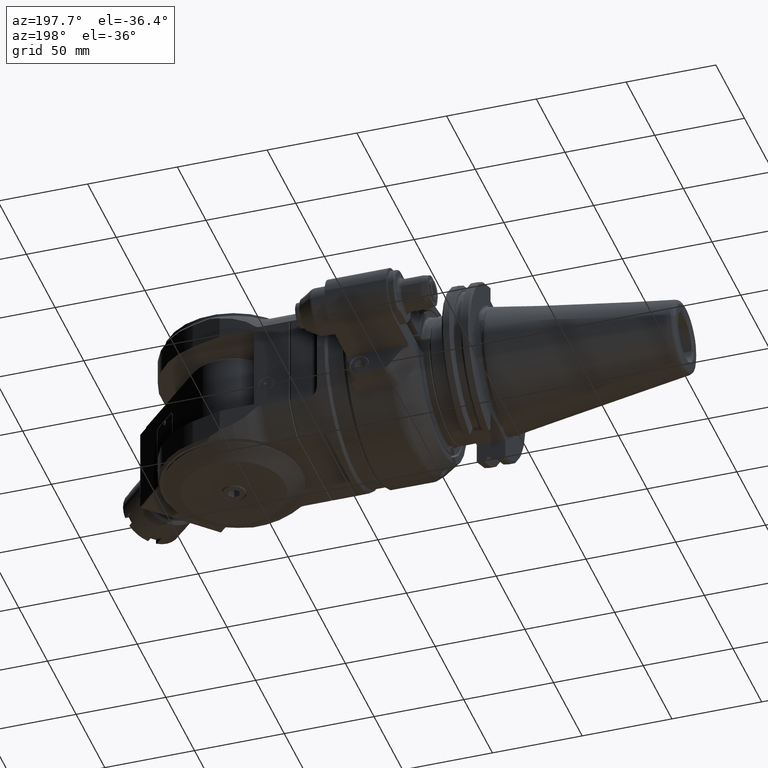
[diagram: clean part render]
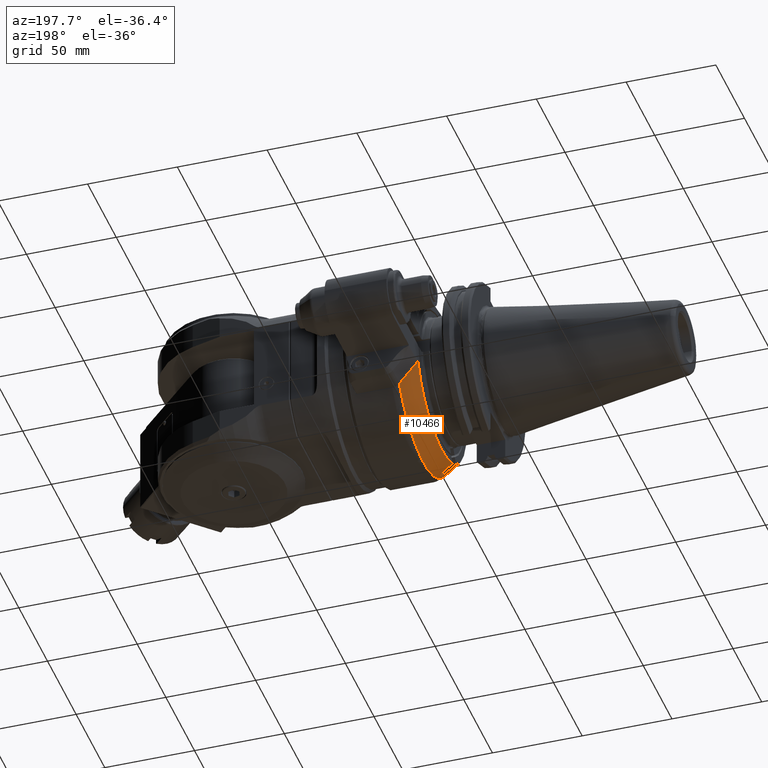
[diagram: same view with one face highlighted and labeled with its STEP entity id]
A machine part, auxiliary view. The second image highlights one B-rep face of the part: STEP entity #10466.
In plain terms, the highlighted conical surface has half-angle 30 deg.
Its self-contained STEP definition (entity closure, byte-faithful):
#229=(
BOUNDED_CURVE()
B_SPLINE_CURVE(2,(#15562,#15563,#15564),.UNSPECIFIED.,.F.,.F.)
B_SPLINE_CURVE_WITH_KNOTS((3,3),(-2.43290769105801,-0.320305328668483),
 .UNSPECIFIED.)
CURVE()
GEOMETRIC_REPRESENTATION_ITEM()
RATIONAL_B_SPLINE_CURVE((1.03252076511009,1.03062027413364,1.00749895945509))
REPRESENTATION_ITEM('')
);
#776=CONICAL_SURFACE('',#11266,46.96410161514,0.523598775598299);
#900=FACE_OUTER_BOUND('',#1551,.T.);
#1551=EDGE_LOOP('',(#7216,#7217,#7218,#7219,#7220,#7221,#7222,#7223));
#2295=CIRCLE('',#11267,49.92820323028);
#2296=CIRCLE('',#11268,44.);
#2297=CIRCLE('',#11269,44.);
#2749=B_SPLINE_CURVE_WITH_KNOTS('',3,(#15683,#15684,#15685,#15686,#15687,
#15688,#15689,#15690,#15691,#15692),.UNSPECIFIED.,.F.,.F.,(4,3,3,4),(0.,
0.3333333333333,0.6666666666667,1.),.UNSPECIFIED.);
#2752=B_SPLINE_CURVE_WITH_KNOTS('',3,(#15745,#15746,#15747,#15748,#15749,
#15750,#15751,#15752,#15753,#15754,#15755,#15756,#15757,#15758,#15759,#15760,
#15761,#15762),.UNSPECIFIED.,.F.,.F.,(4,2,2,2,2,2,2,2,4),(1.11206982951625,
1.24885677734264,1.4029266724495,1.5444028479349,1.68587902342029,1.82735519890569,
1.96883137439109,2.12290126949794,2.25968821732541),.UNSPECIFIED.);
#2754=B_SPLINE_CURVE_WITH_KNOTS('',3,(#15784,#15785,#15786,#15787,#15788,
#15789,#15790,#15791,#15792,#15793),.UNSPECIFIED.,.F.,.F.,(4,3,3,4),(0.,
0.3333333333333,0.6666666666667,1.),.UNSPECIFIED.);
#2755=B_SPLINE_CURVE_WITH_KNOTS('',3,(#15799,#15800,#15801,#15802,#15803,
#15804,#15805,#15806,#15807,#15808),.UNSPECIFIED.,.F.,.F.,(4,3,3,4),(0.,
0.3333333333333,0.6666666666667,1.),.UNSPECIFIED.);
#4490=VERTEX_POINT('',#15550);
#4491=VERTEX_POINT('',#15561);
#4512=VERTEX_POINT('',#15680);
#4513=VERTEX_POINT('',#15682);
#4526=VERTEX_POINT('',#15743);
#4527=VERTEX_POINT('',#15744);
#4531=VERTEX_POINT('',#15783);
#4532=VERTEX_POINT('',#15797);
#5541=EDGE_CURVE('',#4490,#4491,#229,.T.);
#5568=EDGE_CURVE('',#4513,#4512,#2749,.T.);
#5586=EDGE_CURVE('',#4526,#4527,#2752,.F.);
#5593=EDGE_CURVE('',#4526,#4531,#2754,.T.);
#5595=EDGE_CURVE('',#4513,#4490,#2295,.T.);
#5596=EDGE_CURVE('',#4532,#4512,#2296,.T.);
#5597=EDGE_CURVE('',#4532,#4527,#2755,.T.);
#5598=EDGE_CURVE('',#4491,#4531,#2297,.T.);
#7216=ORIENTED_EDGE('',*,*,#5595,.F.);
#7217=ORIENTED_EDGE('',*,*,#5568,.T.);
#7218=ORIENTED_EDGE('',*,*,#5596,.F.);
#7219=ORIENTED_EDGE('',*,*,#5597,.T.);
#7220=ORIENTED_EDGE('',*,*,#5586,.F.);
#7221=ORIENTED_EDGE('',*,*,#5593,.T.);
#7222=ORIENTED_EDGE('',*,*,#5598,.F.);
#7223=ORIENTED_EDGE('',*,*,#5541,.F.);
#10466=ADVANCED_FACE('',(#900),#776,.T.);
#11266=AXIS2_PLACEMENT_3D('',#15795,#12487,#12488);
#11267=AXIS2_PLACEMENT_3D('',#15796,#12489,#12490);
#11268=AXIS2_PLACEMENT_3D('',#15798,#12491,#12492);
#11269=AXIS2_PLACEMENT_3D('',#15809,#12493,#12494);
#12487=DIRECTION('center_axis',(1.,0.,0.));
#12488=DIRECTION('ref_axis',(0.,-1.,0.));
#12489=DIRECTION('center_axis',(1.,0.,0.));
#12490=DIRECTION('ref_axis',(0.,-0.999548602989596,-0.0300431400080999));
#12491=DIRECTION('center_axis',(-1.,0.,0.));
#12492=DIRECTION('ref_axis',(0.,-0.567304004296905,-0.823508449688707));
#12493=DIRECTION('center_axis',(-1.,0.,0.));
#12494=DIRECTION('ref_axis',(0.,0.948863636363632,-0.315686235979311));
#15550=CARTESIAN_POINT('',(-41.23205080757,41.75,-27.38180011986));
#15561=CARTESIAN_POINT('',(-51.5,41.74999999999,-13.89019438316));
#15562=CARTESIAN_POINT('Ctrl Pts',(-41.2320508075673,41.75,-27.3818001198562));
#15563=CARTESIAN_POINT('Ctrl Pts',(-48.0442956678564,41.75,-20.2102413126131));
#15564=CARTESIAN_POINT('Ctrl Pts',(-51.4999999999632,41.75,-13.8901943831554));
#15680=CARTESIAN_POINT('',(-51.5,-43.97442438509,-1.5));
#15682=CARTESIAN_POINT('',(-41.2320595617708,-49.9056607292726,-1.50000007595379));
#15683=CARTESIAN_POINT('Ctrl Pts',(-41.23206831446,-49.90565567486,-1.5));
#15684=CARTESIAN_POINT('Ctrl Pts',(-42.37293045262,-49.24668115316,-1.5));
#15685=CARTESIAN_POINT('Ctrl Pts',(-43.5138242319948,-48.5876765558151,
-1.5));
#15686=CARTESIAN_POINT('Ctrl Pts',(-44.6547122553555,-47.928662020786,-1.5));
#15687=CARTESIAN_POINT('Ctrl Pts',(-45.7956002787165,-47.2696474857567,
-1.5));
#15688=CARTESIAN_POINT('Ctrl Pts',(-46.9364825460635,-46.6106230130433,
-1.5));
#15689=CARTESIAN_POINT('Ctrl Pts',(-48.077363540237,-45.9515842405615,-1.5));
#15690=CARTESIAN_POINT('Ctrl Pts',(-49.2182445344102,-45.2925454680799,
-1.5));
#15691=CARTESIAN_POINT('Ctrl Pts',(-50.35912425541,-44.63349239583,-1.5));
#15692=CARTESIAN_POINT('Ctrl Pts',(-51.5,-43.97442438509,-1.5));
#15743=CARTESIAN_POINT('',(-46.5,-20.34687855495,-42.24182743261));
#15744=CARTESIAN_POINT('',(-46.5,-26.40905638145,-38.74182743261));
#15745=CARTESIAN_POINT('Ctrl Pts',(-46.5000000000002,-26.4090563814455,
-38.7418274326129));
#15746=CARTESIAN_POINT('Ctrl Pts',(-46.0992085079157,-26.5250786273062,
-38.9427838572518));
#15747=CARTESIAN_POINT('Ctrl Pts',(-45.6780271021362,-26.5877455833705,
-39.1945532832522));
#15748=CARTESIAN_POINT('Ctrl Pts',(-44.8336229766582,-26.5711996809164,
-39.7934207779667));
#15749=CARTESIAN_POINT('Ctrl Pts',(-44.416786404141,-26.4721822625297,-40.1489075806805));
#15750=CARTESIAN_POINT('Ctrl Pts',(-43.7689100689263,-26.1383338430384,
-40.8117265913294));
#15751=CARTESIAN_POINT('Ctrl Pts',(-43.4858969585476,-25.8928265156274,
-41.1623315039927));
#15752=CARTESIAN_POINT('Ctrl Pts',(-43.1011571537054,-25.2551263794943,
-41.8163473322267));
#15753=CARTESIAN_POINT('Ctrl Pts',(-43.,-24.8621451840586,-42.1193241407055));
#15754=CARTESIAN_POINT('Ctrl Pts',(-43.,-24.0453321040545,-42.5909113923235));
#15755=CARTESIAN_POINT('Ctrl Pts',(-43.1011571537054,-23.5864558934365,
-42.779754686541));
#15756=CARTESIAN_POINT('Ctrl Pts',(-43.4858969585476,-22.7012115036422,
-43.0050112903121));
#15757=CARTESIAN_POINT('Ctrl Pts',(-43.7689100689263,-22.2748250788787,
-43.0423244163336));
#15758=CARTESIAN_POINT('Ctrl Pts',(-44.416786404141,-21.5338827677997,-43.000036123302));
#15759=CARTESIAN_POINT('Ctrl Pts',(-44.8336229766582,-21.1765134567462,
-42.908044321685));
#15760=CARTESIAN_POINT('Ctrl Pts',(-45.6780271021394,-20.6496060415937,
-42.6229397461805));
#15761=CARTESIAN_POINT('Ctrl Pts',(-46.0992085079223,-20.4629008008123,
-42.4427838572491));
#15762=CARTESIAN_POINT('Ctrl Pts',(-46.5000000000096,-20.3468785549518,
-42.2418274326083));
#15783=CARTESIAN_POINT('',(-51.5,-18.89919836257,-39.7343717863));
#15784=CARTESIAN_POINT('Ctrl Pts',(-46.5000000000021,-20.3468785549516,
-42.2418274326133));
#15785=CARTESIAN_POINT('Ctrl Pts',(-47.0555636796788,-20.1860524218991,
-41.9632683989681));
#15786=CARTESIAN_POINT('Ctrl Pts',(-47.6111251834313,-20.0252176577258,
-41.6846944543344));
#15787=CARTESIAN_POINT('Ctrl Pts',(-48.1666839961781,-19.864373839952,-41.4061048113106));
#15788=CARTESIAN_POINT('Ctrl Pts',(-48.7222428089251,-19.7035300221781,
-41.1275151682867));
#15789=CARTESIAN_POINT('Ctrl Pts',(-49.2777989309903,-19.5426771511998,
-40.8489098273047));
#15790=CARTESIAN_POINT('Ctrl Pts',(-49.8333517949414,-19.381814745264,-40.5702879469552));
#15791=CARTESIAN_POINT('Ctrl Pts',(-50.3889046588924,-19.2209523393283,
-40.2916660666057));
#15792=CARTESIAN_POINT('Ctrl Pts',(-50.9444542651007,-19.0600803989606,
-40.0130276473512));
#15793=CARTESIAN_POINT('Ctrl Pts',(-51.5000000000014,-18.8991983625711,
-39.7343717863022));
#15795=CARTESIAN_POINT('Origin',(-46.36602540378,0.,0.));
#15796=CARTESIAN_POINT('Origin',(-41.23205080757,0.,0.));
#15797=CARTESIAN_POINT('',(-51.5,-24.96137618907,-36.2343717863));
#15798=CARTESIAN_POINT('Origin',(-51.5,0.,0.));
#15799=CARTESIAN_POINT('Ctrl Pts',(-51.4999999999995,-24.9613761890695,
-36.2343717862992));
#15800=CARTESIAN_POINT('Ctrl Pts',(-50.9444542651011,-25.1222582254511,
-36.5130276473516));
#15801=CARTESIAN_POINT('Ctrl Pts',(-50.3889046588926,-25.2831302048165,
-36.7916660440905));
#15802=CARTESIAN_POINT('Ctrl Pts',(-49.8333517949413,-25.4439926282826,
-37.070287914319));
#15803=CARTESIAN_POINT('Ctrl Pts',(-49.2777989309897,-25.6048550517487,
-37.3489097845476));
#15804=CARTESIAN_POINT('Ctrl Pts',(-48.7222428089239,-25.7657079191777,
-37.6275151275794));
#15805=CARTESIAN_POINT('Ctrl Pts',(-48.166683996177,-25.9265517183818,-37.9061047813243));
#15806=CARTESIAN_POINT('Ctrl Pts',(-47.6111251834304,-26.0873955175858,
-38.1846944350692));
#15807=CARTESIAN_POINT('Ctrl Pts',(-47.0555636796788,-26.2482302483888,
-38.4632683989682));
#15808=CARTESIAN_POINT('Ctrl Pts',(-46.5,-26.40905638145,-38.74182743261));
#15809=CARTESIAN_POINT('Origin',(-51.5,0.,0.));